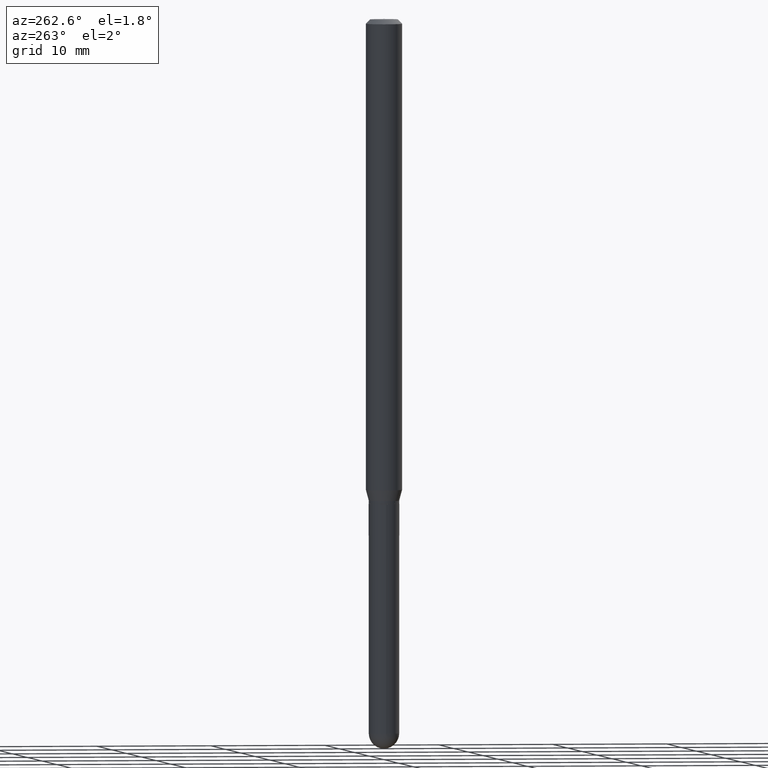
[diagram: clean part render]
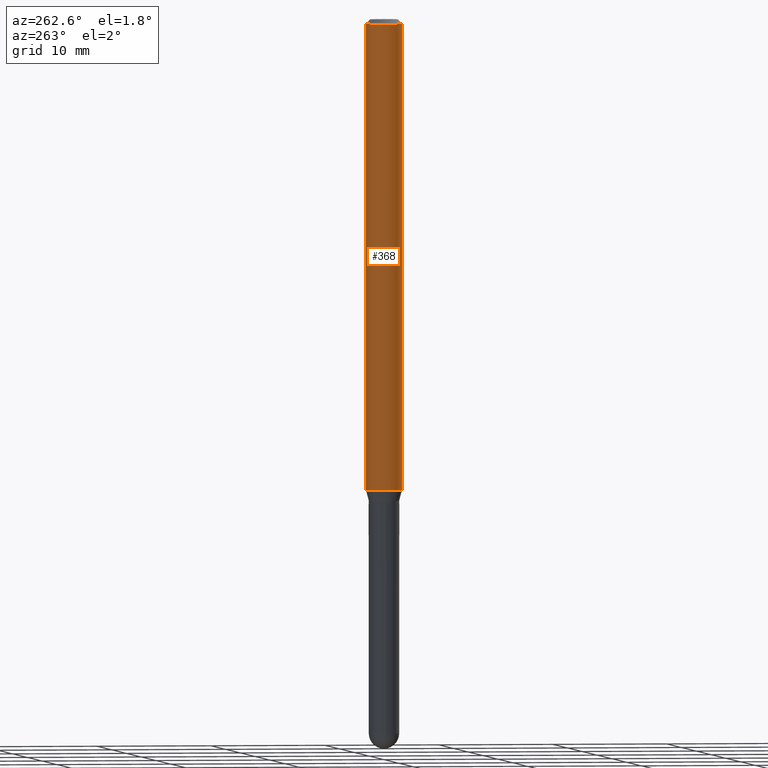
[diagram: same view with one face highlighted and labeled with its STEP entity id]
A machine part, auxiliary view. The second image highlights one B-rep face of the part: STEP entity #368.
In plain terms, the highlighted cylindrical surface (edge-blend (fillet) strip) has radius 1.5875 mm, axis along (-0, 0, 1).
Its self-contained STEP definition (entity closure, byte-faithful):
#1 = VERTEX_POINT ( 'NONE', #390 ) ;
#18 = DIRECTION ( 'NONE',  ( -2.445364598941922338E-29, 3.491630569546536123E-15, 1.000000000000000000 ) ) ;
#31 = DIRECTION ( 'NONE',  ( -2.445364598941922338E-29, 3.491630569546536123E-15, 1.000000000000000000 ) ) ;
#41 = EDGE_CURVE ( 'NONE', #1, #269, #425, .T. ) ;
#52 = CARTESIAN_POINT ( 'NONE',  ( 3.943589338991358859E-29, -5.630881012883705018E-15, -1.612679491924312369 ) ) ;
#58 = DIRECTION ( 'NONE',  ( -6.982962677686265922E-15, -1.000000000000000000, 4.370956789862821150E-15 ) ) ;
#73 = VERTEX_POINT ( 'NONE', #397 ) ;
#74 = FACE_OUTER_BOUND ( 'NONE', #147, .T. ) ;
#80 = EDGE_CURVE ( 'NONE', #382, #73, #242, .T. ) ;
#82 = CIRCLE ( 'NONE', #377, 0.06250000000000000000 ) ;
#109 = EDGE_CURVE ( 'NONE', #382, #1, #300, .T. ) ;
#112 = CARTESIAN_POINT ( 'NONE',  ( 0.000000000000000000, 0.000000000000000000, 0.000000000000000000 ) ) ;
#116 = ORIENTED_EDGE ( 'NONE', *, *, #109, .T. ) ;
#121 = DIRECTION ( 'NONE',  ( -6.982962677686265922E-15, -1.000000000000000000, 3.483106191921935554E-15 ) ) ;
#125 = VECTOR ( 'NONE', #478, 39.37007874015748143 ) ;
#130 = CARTESIAN_POINT ( 'NONE',  ( -4.364351673553916201E-16, -0.06250000000000000000, 2.182269105966584831E-16 ) ) ;
#147 = EDGE_LOOP ( 'NONE', ( #453, #116, #153, #195 ) ) ;
#153 = ORIENTED_EDGE ( 'NONE', *, *, #41, .T. ) ;
#162 = DIRECTION ( 'NONE',  ( -2.445364598941922057E-29, 3.491630569546536123E-15, 1.000000000000000000 ) ) ;
#172 = CARTESIAN_POINT ( 'NONE',  ( 4.440892098500625669E-16, 0.06250000000000000000, -2.182269105966584831E-16 ) ) ;
#195 = ORIENTED_EDGE ( 'NONE', *, *, #317, .F. ) ;
#242 = LINE ( 'NONE', #172, #125 ) ;
#263 = CYLINDRICAL_SURFACE ( 'NONE', #362, 0.06250000000000000000 ) ;
#264 = DIRECTION ( 'NONE',  ( -2.445364598941922338E-29, 3.491630569546536123E-15, 1.000000000000000000 ) ) ;
#269 = VERTEX_POINT ( 'NONE', #394 ) ;
#289 = VECTOR ( 'NONE', #162, 39.37007874015748143 ) ;
#300 = CIRCLE ( 'NONE', #482, 0.06250000000000000000 ) ;
#317 = EDGE_CURVE ( 'NONE', #73, #269, #82, .T. ) ;
#362 = AXIS2_PLACEMENT_3D ( 'NONE', #112, #31, #414 ) ;
#368 = ADVANCED_FACE ( 'NONE', ( #74 ), #263, .T. ) ;
#373 = CARTESIAN_POINT ( 'NONE',  ( 3.668046898412900305E-31, -5.237445854319827038E-17, -0.01500000000000006710 ) ) ;
#377 = AXIS2_PLACEMENT_3D ( 'NONE', #373, #264, #121 ) ;
#382 = VERTEX_POINT ( 'NONE', #502 ) ;
#390 = CARTESIAN_POINT ( 'NONE',  ( -4.364351673553520291E-16, -0.06250000000000560663, -1.612679491924311925 ) ) ;
#394 = CARTESIAN_POINT ( 'NONE',  ( -4.364351673553912750E-16, -0.06250000000000005551, -0.01499999999999984852 ) ) ;
#397 = CARTESIAN_POINT ( 'NONE',  ( 4.440892098501022564E-16, 0.06249999999999995143, -0.01500000000000028394 ) ) ;
#414 = DIRECTION ( 'NONE',  ( -6.982962677686265922E-15, -1.000000000000000000, 3.491630569546535729E-15 ) ) ;
#425 = LINE ( 'NONE', #130, #289 ) ;
#453 = ORIENTED_EDGE ( 'NONE', *, *, #80, .F. ) ;
#478 = DIRECTION ( 'NONE',  ( -2.445364598941922057E-29, 3.491630569546536123E-15, 1.000000000000000000 ) ) ;
#482 = AXIS2_PLACEMENT_3D ( 'NONE', #52, #18, #58 ) ;
#502 = CARTESIAN_POINT ( 'NONE',  ( 4.440892098501021578E-16, 0.06249999999999439337, -1.612679491924312591 ) ) ;